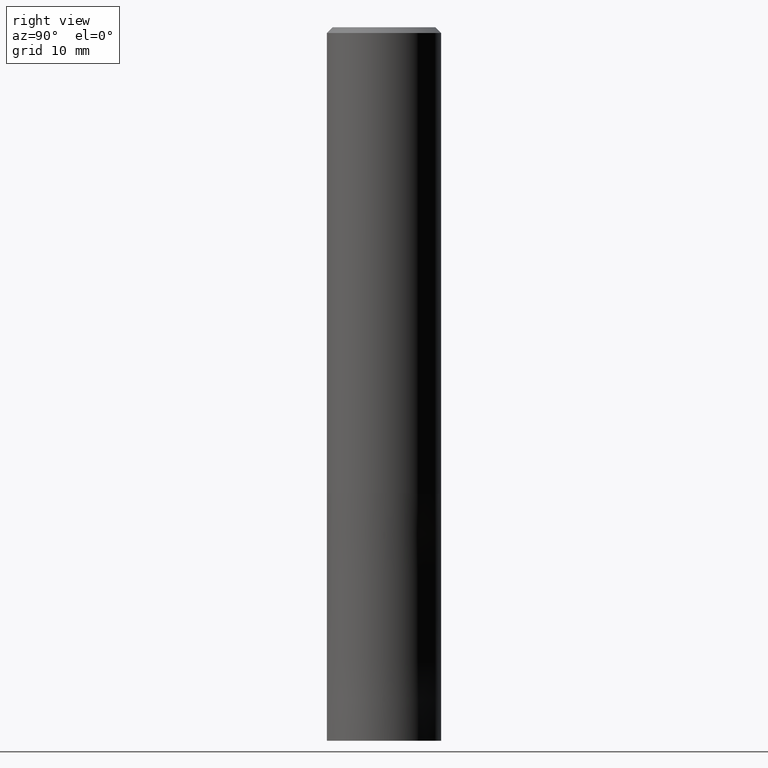
[diagram: clean part render]
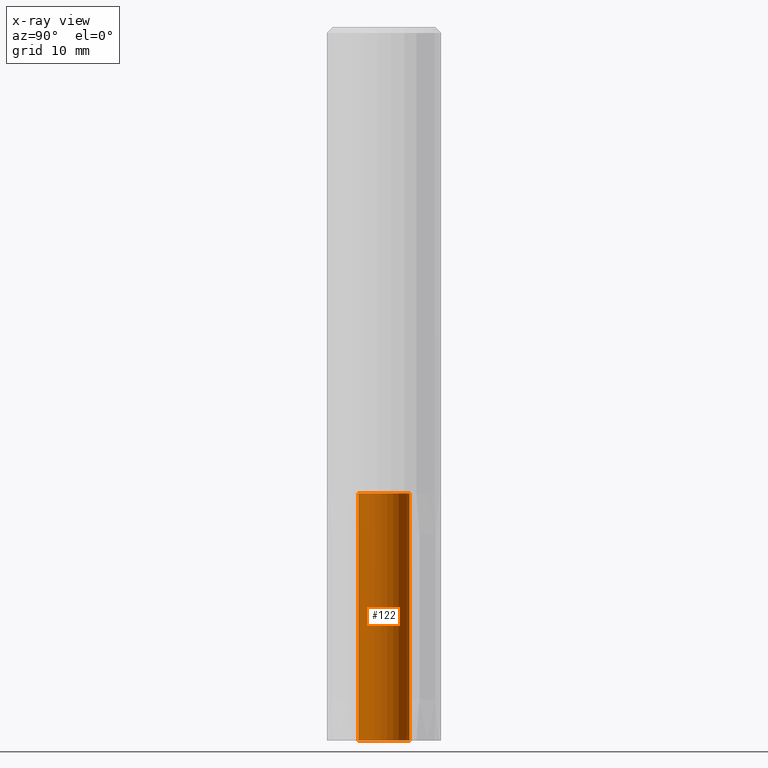
[diagram: x-ray — body ghosted, one internal face saturated and labeled with its STEP entity id]
A machine part, right view, then the same camera in x-ray: the body is ghosted and one INTERNAL B-rep face — a face not visible from any outside direction — is saturated and labeled: STEP entity #122.
In plain terms, the highlighted cylindrical surface (edge-blend (fillet) strip) has radius 2.7 mm, axis along (-0, -0, 1).
Its self-contained STEP definition (entity closure, byte-faithful):
#98=EDGE_CURVE('',#136,#218,#243,.T.);
#102=EDGE_CURVE('',#120,#210,#247,.T.);
#120=VERTEX_POINT('',#266);
#122=ADVANCED_FACE('',(#268),#269,.F.);
#136=VERTEX_POINT('',#286);
#146=EDGE_CURVE('',#120,#136,#297,.T.);
#204=EDGE_CURVE('',#218,#210,#366,.T.);
#210=VERTEX_POINT('',#372);
#218=VERTEX_POINT('',#381);
#243=CIRCLE('',#399,2.7);
#247=CIRCLE('',#405,2.7);
#266=CARTESIAN_POINT('',(0.0,2.7,-49.0));
#268=FACE_OUTER_BOUND('',#436,.T.);
#269=CYLINDRICAL_SURFACE('',#437,2.7);
#286=CARTESIAN_POINT('',(0.0,2.7,-75.0));
#297=LINE('',#473,#474);
#366=LINE('',#553,#554);
#372=CARTESIAN_POINT('',(3.30643715532042E-016,-2.7,-49.0));
#381=CARTESIAN_POINT('',(3.30643715532042E-016,-2.7,-75.0));
#399=AXIS2_PLACEMENT_3D('',#576,#577,#578);
#405=AXIS2_PLACEMENT_3D('',#582,#583,#584);
#436=EDGE_LOOP('',(#609,#610,#611,#612));
#437=AXIS2_PLACEMENT_3D('',#613,#614,#615);
#473=CARTESIAN_POINT('',(-3.30643715532042E-016,2.7,-62.0));
#474=VECTOR('',#649,1.0);
#553=CARTESIAN_POINT('',(3.30643715532042E-016,-2.7,-62.0));
#554=VECTOR('',#736,1.0);
#576=CARTESIAN_POINT('',(0.0,0.0,-75.0));
#577=DIRECTION('',(0.0,0.0,-1.0));
#578=DIRECTION('',(0.0,1.0,0.0));
#582=CARTESIAN_POINT('',(0.0,0.0,-49.0));
#583=DIRECTION('',(0.0,0.0,-1.0));
#584=DIRECTION('',(0.0,1.0,0.0));
#609=ORIENTED_EDGE('',*,*,#146,.T.);
#610=ORIENTED_EDGE('',*,*,#98,.T.);
#611=ORIENTED_EDGE('',*,*,#204,.T.);
#612=ORIENTED_EDGE('',*,*,#102,.F.);
#613=CARTESIAN_POINT('',(0.0,0.0,-62.0));
#614=DIRECTION('',(-0.0,-0.0,1.0));
#615=DIRECTION('',(0.0,1.0,0.0));
#649=DIRECTION('',(0.0,-0.0,-1.0));
#736=DIRECTION('',(0.0,-0.0,1.0));